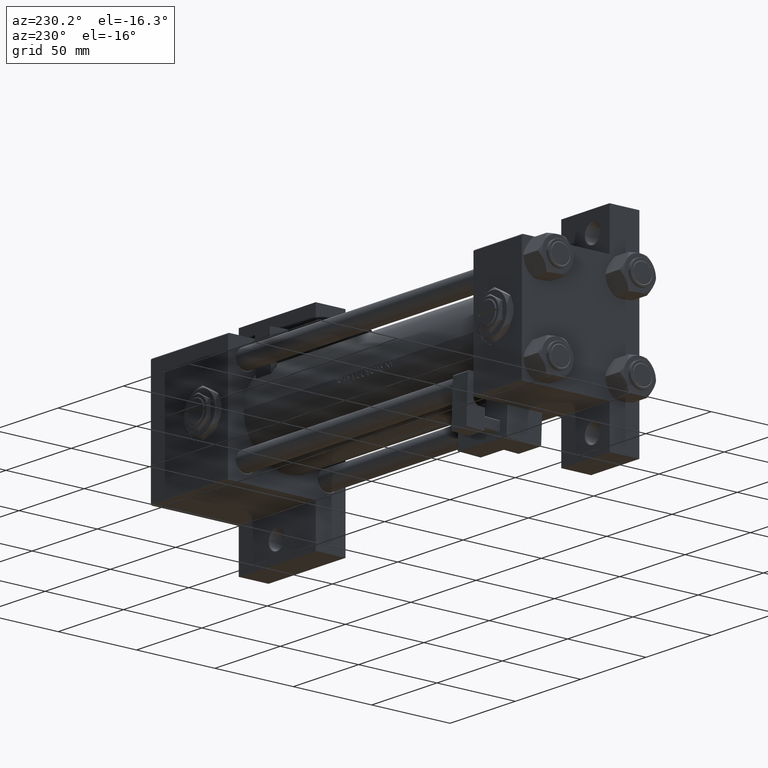
[diagram: clean part render]
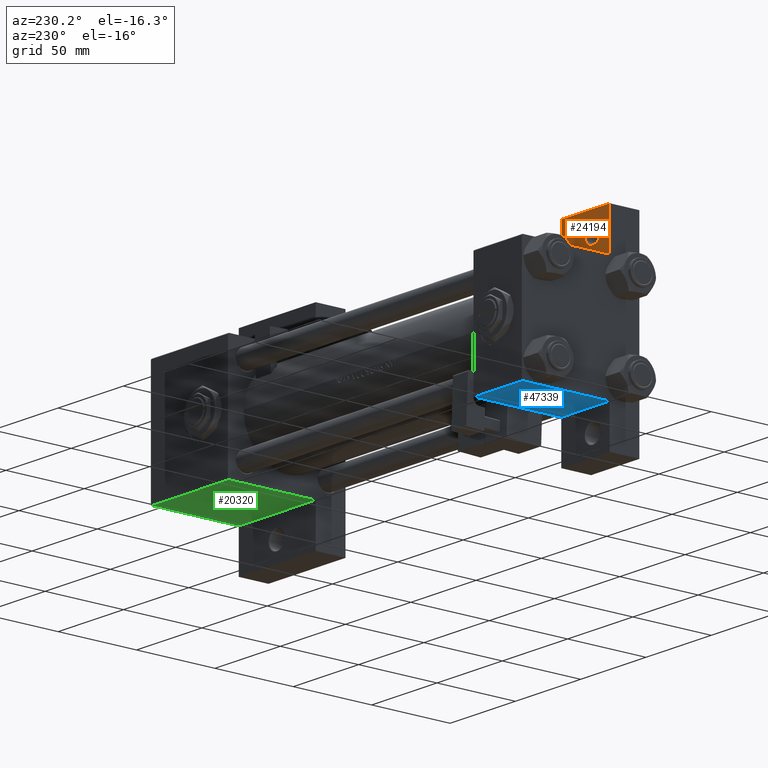
[diagram: same view with three faces highlighted in distinct colors, each labeled with its STEP entity id]
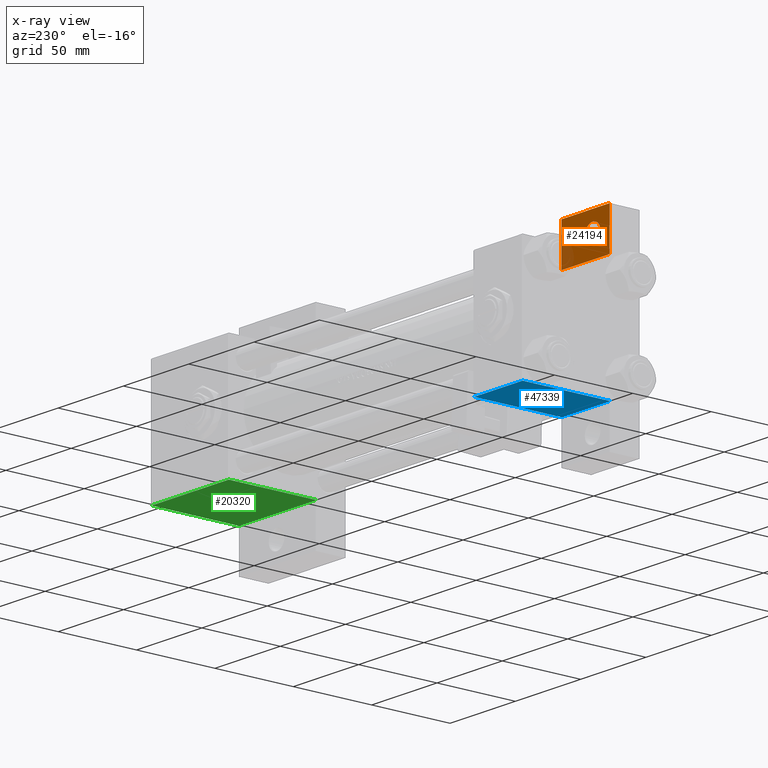
[diagram: x-ray of the same camera — body ghosted, the three highlighted faces saturated]
A machine part, auxiliary view with three faces highlighted in distinct colors.
The next image is the same camera in x-ray (body ghosted, the three faces saturated) — at least one of them is partly hidden behind the body in this view.
Their STEP definitions:

[orange] entity #24194 — the highlighted planar face has unit normal (0, -1, 0).
#153 = PLANE ( 'NONE',  #17783 ) ;
#518 = CARTESIAN_POINT ( 'NONE',  ( 3.977209754999747208E-16, -63.50000000000000000, -18.50000000000000355 ) ) ;
#773 = ORIENTED_EDGE ( 'NONE', *, *, #49995, .T. ) ;
#1635 = DIRECTION ( 'NONE',  ( -1.000000000000000000, 0.000000000000000000, 0.000000000000000000 ) ) ;
#1761 = VERTEX_POINT ( 'NONE', #27908 ) ;
#3814 = LINE ( 'NONE', #28182, #7880 ) ;
#3976 = CARTESIAN_POINT ( 'NONE',  ( 7.000500000000030809, -51.00000000000002842, -18.50000000000000000 ) ) ;
#5584 = VERTEX_POINT ( 'NONE', #50687 ) ;
#6881 = CARTESIAN_POINT ( 'NONE',  ( 37.00000000000000000, -63.50000000000000000, -18.50000000000000355 ) ) ;
#7880 = VECTOR ( 'NONE', #47075, 1000.000000000000000 ) ;
#8736 = CARTESIAN_POINT ( 'NONE',  ( 0.000000000000000000, 0.000000000000000000, -18.50000000000000000 ) ) ;
#9403 = VERTEX_POINT ( 'NONE', #6881 ) ;
#9958 = DIRECTION ( 'NONE',  ( -1.000000000000000000, 0.000000000000000000, 0.000000000000000000 ) ) ;
#12434 = VERTEX_POINT ( 'NONE', #39245 ) ;
#12613 = DIRECTION ( 'NONE',  ( 0.000000000000000000, 0.000000000000000000, -1.000000000000000000 ) ) ;
#13680 = CIRCLE ( 'NONE', #42638, 5.999499999999966526 ) ;
#14617 = DIRECTION ( 'NONE',  ( 0.000000000000000000, 0.000000000000000000, -1.000000000000000000 ) ) ;
#15225 = CARTESIAN_POINT ( 'NONE',  ( -7.145701223179000102E-16, -37.50000000000001421, -18.49999999999999645 ) ) ;
#15967 = DIRECTION ( 'NONE',  ( -1.000000000000000000, 0.000000000000000000, -0.000000000000000000 ) ) ;
#16903 = DIRECTION ( 'NONE',  ( 4.278042683914906889E-17, -1.000000000000000000, 0.000000000000000000 ) ) ;
#17440 = DIRECTION ( 'NONE',  ( 0.000000000000000000, 0.000000000000000000, -1.000000000000000000 ) ) ;
#17703 = VECTOR ( 'NONE', #16903, 1000.000000000000000 ) ;
#17783 = AXIS2_PLACEMENT_3D ( 'NONE', #8736, #12613, #15967 ) ;
#20640 = FACE_BOUND ( 'NONE', #43558, .T. ) ;
#20782 = LINE ( 'NONE', #36607, #17703 ) ;
#20972 = EDGE_CURVE ( 'NONE', #1761, #12434, #50706, .T. ) ;
#21336 = CARTESIAN_POINT ( 'NONE',  ( 12.99999999999999822, -51.00000000000002842, -18.50000000000000000 ) ) ;
#22235 = AXIS2_PLACEMENT_3D ( 'NONE', #21336, #17440, #1635 ) ;
#22326 = ORIENTED_EDGE ( 'NONE', *, *, #27021, .T. ) ;
#24194 = ADVANCED_FACE ( 'NONE', ( #20640, #35930 ), #153, .F. ) ;
#24980 = ORIENTED_EDGE ( 'NONE', *, *, #36191, .T. ) ;
#27021 = EDGE_CURVE ( 'NONE', #9403, #1761, #3814, .T. ) ;
#27908 = CARTESIAN_POINT ( 'NONE',  ( 37.00000000000000000, -37.50000000000000000, -18.50000000000000355 ) ) ;
#28182 = CARTESIAN_POINT ( 'NONE',  ( 37.00000000000000000, -63.49999999999998579, -18.50000000000000355 ) ) ;
#28884 = EDGE_CURVE ( 'NONE', #5584, #9403, #36026, .T. ) ;
#31047 = VECTOR ( 'NONE', #48202, 1000.000000000000000 ) ;
#31296 = CIRCLE ( 'NONE', #22235, 5.999499999999966526 ) ;
#31641 = ORIENTED_EDGE ( 'NONE', *, *, #28884, .T. ) ;
#35930 = FACE_OUTER_BOUND ( 'NONE', #40957, .T. ) ;
#36026 = LINE ( 'NONE', #518, #31047 ) ;
#36191 = EDGE_CURVE ( 'NONE', #41694, #37589, #31296, .T. ) ;
#36607 = CARTESIAN_POINT ( 'NONE',  ( 3.977209754999744250E-16, -63.49999999999998579, -18.50000000000000355 ) ) ;
#37589 = VERTEX_POINT ( 'NONE', #46143 ) ;
#39245 = CARTESIAN_POINT ( 'NONE',  ( -7.145701223179004046E-16, -37.50000000000000711, -18.50000000000000355 ) ) ;
#39924 = ORIENTED_EDGE ( 'NONE', *, *, #43768, .T. ) ;
#40098 = DIRECTION ( 'NONE',  ( -1.000000000000000000, 0.000000000000000000, 0.000000000000000000 ) ) ;
#40841 = VECTOR ( 'NONE', #40098, 1000.000000000000000 ) ;
#40957 = EDGE_LOOP ( 'NONE', ( #22326, #48782, #39924, #31641 ) ) ;
#41694 = VERTEX_POINT ( 'NONE', #3976 ) ;
#42345 = CARTESIAN_POINT ( 'NONE',  ( 12.99999999999999822, -51.00000000000002842, -18.50000000000000000 ) ) ;
#42638 = AXIS2_PLACEMENT_3D ( 'NONE', #42345, #14617, #9958 ) ;
#43558 = EDGE_LOOP ( 'NONE', ( #773, #24980 ) ) ;
#43768 = EDGE_CURVE ( 'NONE', #12434, #5584, #20782, .T. ) ;
#46143 = CARTESIAN_POINT ( 'NONE',  ( 18.99949999999996564, -51.00000000000002842, -18.50000000000000000 ) ) ;
#47075 = DIRECTION ( 'NONE',  ( -0.000000000000000000, 1.000000000000000000, 0.000000000000000000 ) ) ;
#48202 = DIRECTION ( 'NONE',  ( 1.000000000000000000, 0.000000000000000000, 0.000000000000000000 ) ) ;
#48782 = ORIENTED_EDGE ( 'NONE', *, *, #20972, .T. ) ;
#49995 = EDGE_CURVE ( 'NONE', #37589, #41694, #13680, .T. ) ;
#50687 = CARTESIAN_POINT ( 'NONE',  ( 3.977209754999747208E-16, -63.50000000000000000, -18.50000000000000355 ) ) ;
#50706 = LINE ( 'NONE', #15225, #40841 ) ;

[blue] entity #47339 — the highlighted planar face has unit normal (0, 0, -1).
#2419 = VECTOR ( 'NONE', #48028, 1000.000000000000000 ) ;
#3212 = DIRECTION ( 'NONE',  ( -0.000000000000000000, 1.000000000000000000, 0.000000000000000000 ) ) ;
#5372 = VECTOR ( 'NONE', #42946, 1000.000000000000000 ) ;
#7669 = ORIENTED_EDGE ( 'NONE', *, *, #16101, .T. ) ;
#9814 = EDGE_CURVE ( 'NONE', #23019, #49944, #49577, .T. ) ;
#12032 = EDGE_CURVE ( 'NONE', #24653, #49944, #43704, .T. ) ;
#12523 = LINE ( 'NONE', #36120, #2419 ) ;
#13590 = CARTESIAN_POINT ( 'NONE',  ( 37.00000000000000711, 37.50000000000000711, -18.50000000000000355 ) ) ;
#14337 = CARTESIAN_POINT ( 'NONE',  ( 37.00000000000000000, 37.49999999999999289, 37.50000000000000000 ) ) ;
#15995 = EDGE_LOOP ( 'NONE', ( #16266, #20812, #7669, #17029 ) ) ;
#16101 = EDGE_CURVE ( 'NONE', #18657, #23019, #36946, .T. ) ;
#16266 = ORIENTED_EDGE ( 'NONE', *, *, #12032, .F. ) ;
#17029 = ORIENTED_EDGE ( 'NONE', *, *, #9814, .T. ) ;
#17741 = CARTESIAN_POINT ( 'NONE',  ( 37.00000000000000000, 37.49999999999999289, 37.00000000000000000 ) ) ;
#18657 = VERTEX_POINT ( 'NONE', #36324 ) ;
#18765 = DIRECTION ( 'NONE',  ( 0.000000000000000000, -0.000000000000000000, 1.000000000000000000 ) ) ;
#20812 = ORIENTED_EDGE ( 'NONE', *, *, #41766, .F. ) ;
#23019 = VERTEX_POINT ( 'NONE', #27234 ) ;
#24653 = VERTEX_POINT ( 'NONE', #49703 ) ;
#26332 = FACE_OUTER_BOUND ( 'NONE', #15995, .T. ) ;
#27234 = CARTESIAN_POINT ( 'NONE',  ( 37.00000000000000000, 37.49999999999999289, 37.00000000000000000 ) ) ;
#27397 = CARTESIAN_POINT ( 'NONE',  ( 8.470280871287256020E-15, 37.50000000000002842, -18.49999999999999645 ) ) ;
#27626 = VECTOR ( 'NONE', #37417, 1000.000000000000000 ) ;
#29961 = CARTESIAN_POINT ( 'NONE',  ( 37.00000000000000000, 37.49999999999999289, 37.50000000000000000 ) ) ;
#36120 = CARTESIAN_POINT ( 'NONE',  ( 0.000000000000000000, 37.49999999999999289, 37.50000000000000000 ) ) ;
#36324 = CARTESIAN_POINT ( 'NONE',  ( 0.000000000000000000, 37.49999999999999289, 37.00000000000000000 ) ) ;
#36946 = LINE ( 'NONE', #17741, #41106 ) ;
#37417 = DIRECTION ( 'NONE',  ( 0.000000000000000000, 0.000000000000000000, -1.000000000000000000 ) ) ;
#38479 = PLANE ( 'NONE',  #50142 ) ;
#41106 = VECTOR ( 'NONE', #49093, 1000.000000000000000 ) ;
#41766 = EDGE_CURVE ( 'NONE', #18657, #24653, #12523, .T. ) ;
#42946 = DIRECTION ( 'NONE',  ( 1.000000000000000000, -3.750753461571474945E-16, 0.000000000000000000 ) ) ;
#43704 = LINE ( 'NONE', #27397, #5372 ) ;
#47339 = ADVANCED_FACE ( 'NONE', ( #26332 ), #38479, .T. ) ;
#48028 = DIRECTION ( 'NONE',  ( 0.000000000000000000, 0.000000000000000000, -1.000000000000000000 ) ) ;
#49093 = DIRECTION ( 'NONE',  ( 1.000000000000000000, 0.000000000000000000, 0.000000000000000000 ) ) ;
#49577 = LINE ( 'NONE', #14337, #27626 ) ;
#49703 = CARTESIAN_POINT ( 'NONE',  ( 0.000000000000000000, 37.49999999999999289, -18.49999999999999645 ) ) ;
#49944 = VERTEX_POINT ( 'NONE', #13590 ) ;
#50142 = AXIS2_PLACEMENT_3D ( 'NONE', #29961, #3212, #18765 ) ;

[green] entity #20320 — the highlighted planar face has unit normal (0, 0, -1).
#1105 = EDGE_LOOP ( 'NONE', ( #29731, #6294, #13495, #45750 ) ) ;
#2105 = DIRECTION ( 'NONE',  ( 1.000000000000000000, 0.000000000000000000, 0.000000000000000000 ) ) ;
#2262 = CARTESIAN_POINT ( 'NONE',  ( 284.0000000000000568, 37.50000000000000000, 37.49999999999999289 ) ) ;
#2264 = CARTESIAN_POINT ( 'NONE',  ( 284.0000000000000568, 37.49999999999995026, -18.50000000000000000 ) ) ;
#2866 = LINE ( 'NONE', #37619, #36301 ) ;
#3347 = LINE ( 'NONE', #6510, #29565 ) ;
#5425 = CARTESIAN_POINT ( 'NONE',  ( 284.0000000000000568, 37.50000000000000000, 37.49999999999999289 ) ) ;
#6294 = ORIENTED_EDGE ( 'NONE', *, *, #37967, .T. ) ;
#6510 = CARTESIAN_POINT ( 'NONE',  ( 225.0000000000000000, 37.50000000000000000, 37.49999999999999289 ) ) ;
#13344 = LINE ( 'NONE', #40572, #40111 ) ;
#13495 = ORIENTED_EDGE ( 'NONE', *, *, #38859, .T. ) ;
#15566 = CARTESIAN_POINT ( 'NONE',  ( 225.0000000000000000, 37.50000000000000000, -18.50000000000000355 ) ) ;
#16462 = VECTOR ( 'NONE', #41191, 1000.000000000000000 ) ;
#16769 = AXIS2_PLACEMENT_3D ( 'NONE', #2262, #25346, #21427 ) ;
#16973 = DIRECTION ( 'NONE',  ( -1.000000000000000000, 8.232585987686542394E-16, -0.000000000000000000 ) ) ;
#20320 = ADVANCED_FACE ( 'NONE', ( #33620 ), #45531, .T. ) ;
#21427 = DIRECTION ( 'NONE',  ( 0.000000000000000000, -0.000000000000000000, 1.000000000000000000 ) ) ;
#22178 = VERTEX_POINT ( 'NONE', #2264 ) ;
#25346 = DIRECTION ( 'NONE',  ( -0.000000000000000000, 1.000000000000000000, 0.000000000000000000 ) ) ;
#26959 = DIRECTION ( 'NONE',  ( 0.000000000000000000, 0.000000000000000000, -1.000000000000000000 ) ) ;
#29565 = VECTOR ( 'NONE', #26959, 1000.000000000000000 ) ;
#29635 = VERTEX_POINT ( 'NONE', #15566 ) ;
#29731 = ORIENTED_EDGE ( 'NONE', *, *, #33874, .F. ) ;
#33236 = VERTEX_POINT ( 'NONE', #44217 ) ;
#33620 = FACE_OUTER_BOUND ( 'NONE', #1105, .T. ) ;
#33874 = EDGE_CURVE ( 'NONE', #33236, #29635, #3347, .T. ) ;
#36301 = VECTOR ( 'NONE', #2105, 1000.000000000000000 ) ;
#37619 = CARTESIAN_POINT ( 'NONE',  ( 284.0000000000000568, 37.50000000000000000, 36.99999999999993605 ) ) ;
#37967 = EDGE_CURVE ( 'NONE', #33236, #39969, #2866, .T. ) ;
#38859 = EDGE_CURVE ( 'NONE', #39969, #22178, #40931, .T. ) ;
#38889 = CARTESIAN_POINT ( 'NONE',  ( 284.0000000000000568, 37.50000000000000000, 36.99999999999993605 ) ) ;
#39969 = VERTEX_POINT ( 'NONE', #38889 ) ;
#40111 = VECTOR ( 'NONE', #16973, 1000.000000000000000 ) ;
#40572 = CARTESIAN_POINT ( 'NONE',  ( 225.0000000000000284, 37.50000000000000000, -18.50000000000000000 ) ) ;
#40931 = LINE ( 'NONE', #5425, #16462 ) ;
#41191 = DIRECTION ( 'NONE',  ( 0.000000000000000000, 0.000000000000000000, -1.000000000000000000 ) ) ;
#44217 = CARTESIAN_POINT ( 'NONE',  ( 225.0000000000000000, 37.50000000000000000, 36.99999999999993605 ) ) ;
#45531 = PLANE ( 'NONE',  #16769 ) ;
#45750 = ORIENTED_EDGE ( 'NONE', *, *, #46075, .T. ) ;
#46075 = EDGE_CURVE ( 'NONE', #22178, #29635, #13344, .T. ) ;